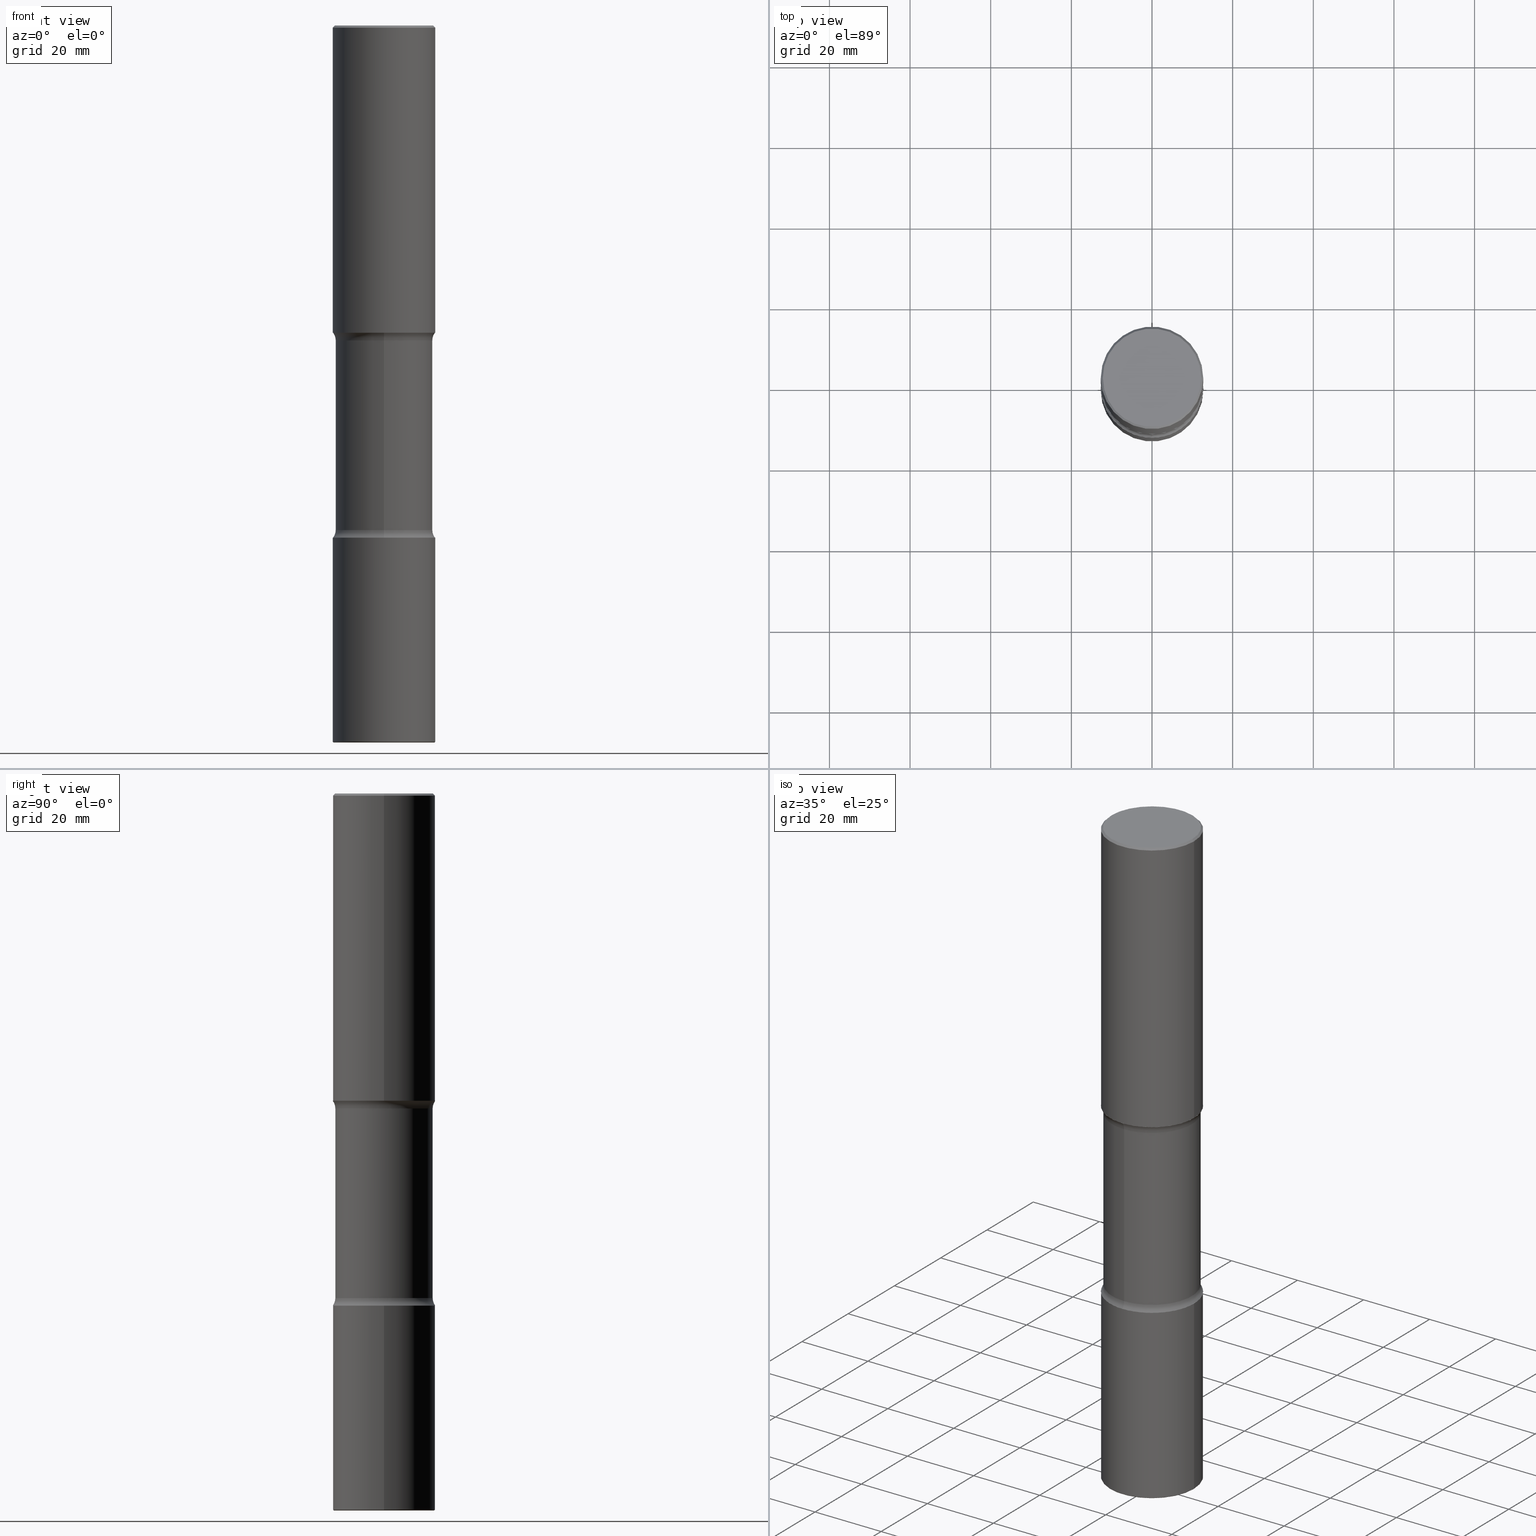
[diagram: canonical four-view strip — front | top / right | iso, engineering-drawing reading convention]
A machine part, canonical four-view strip (front | top / right | iso — engineering-drawing reading convention). The complete STEP part file that produces these views, byte-faithful:
ISO-10303-21;
HEADER;
FILE_DESCRIPTION (( 'STEP AP203' ),
    '1' );
FILE_NAME ('37961.STEP',
    '2024-03-02T01:49:52',
    ( '' ),
    ( '' ),
    'SwSTEP 2.0',
    'SolidWorks 2023',
    '' );
FILE_SCHEMA (( 'CONFIG_CONTROL_DESIGN' ));
ENDSEC;

DATA;
#1 = ORIENTED_EDGE ( 'NONE', *, *, #489, .T. ) ;
#2 = APPLICATION_CONTEXT ( 'configuration controlled 3d designs of mechanical parts and assemblies' ) ;
#3 = DIRECTION ( 'NONE',  ( -2.445468806185136597E-29, 3.491481338843145583E-15, 1.000000000000000000 ) ) ;
#4 = ORIENTED_EDGE ( 'NONE', *, *, #401, .F. ) ;
#5 = CALENDAR_DATE ( 2024, 1, 3 ) ;
#6 = DIRECTION ( 'NONE',  ( 1.000000000000000000, -6.982962677686266711E-15, 0.000000000000000000 ) ) ;
#7 = ORIENTED_EDGE ( 'NONE', *, *, #253, .F. ) ;
#8 = AXIS2_PLACEMENT_3D ( 'NONE', #494, #103, #61 ) ;
#9 = CIRCLE ( 'NONE', #511, 0.4900000000000002132 ) ;
#10 = EDGE_CURVE ( 'NONE', #410, #215, #295, .T. ) ;
#11 = CARTESIAN_POINT ( 'NONE',  ( 0.4900000000000002132, -2.786202108396829505E-14, -7.000000000000000888 ) ) ;
#12 = APPROVAL_DATE_TIME ( #408, #384 ) ;
#13 = CIRCLE ( 'NONE', #209, 0.4799999999999998157 ) ;
#14 = LOCAL_TIME ( 20, 49, 52.00000000000000000, #122 ) ;
#15 = ADVANCED_FACE ( 'NONE', ( #533 ), #141, .T. ) ;
#16 = ORIENTED_EDGE ( 'NONE', *, *, #409, .F. ) ;
#17 = DIRECTION ( 'NONE',  ( -0.7071067811865471286, 2.468850131082252722E-15, -0.7071067811865479058 ) ) ;
#18 = DIRECTION ( 'NONE',  ( 1.000000000000000000, -6.982962677686265922E-15, 4.876176775795935793E-29 ) ) ;
#19 = AXIS2_PLACEMENT_3D ( 'NONE', #383, #69, #18 ) ;
#20 = CC_DESIGN_DATE_AND_TIME_ASSIGNMENT ( #30, #124, ( #431 ) ) ;
#21 = AXIS2_PLACEMENT_3D ( 'NONE', #123, #163, #41 ) ;
#22 = CYLINDRICAL_SURFACE ( 'NONE', #470, 0.4750000000000000333 ) ;
#23 = ORIENTED_EDGE ( 'NONE', *, *, #330, .T. ) ;
#24 = DIRECTION ( 'NONE',  ( -2.445468806185136597E-29, 3.491481338843145583E-15, 1.000000000000000000 ) ) ;
#25 = ORIENTED_EDGE ( 'NONE', *, *, #292, .F. ) ;
#26 = CARTESIAN_POINT ( 'NONE',  ( -0.5000000000000006661, -2.085274087971308453E-14, -6.989999999999999325 ) ) ;
#27 = DIRECTION ( 'NONE',  ( -2.445468806185136597E-29, 3.491481338843145583E-15, 1.000000000000000000 ) ) ;
#28 = DIRECTION ( 'NONE',  ( -1.000000000000000000, 6.982962677686265922E-15, -4.883557194083112340E-29 ) ) ;
#29 = DIRECTION ( 'NONE',  ( 6.982962677686265133E-15, 1.000000000000000000, -2.300503573612011422E-15 ) ) ;
#30 = DATE_AND_TIME ( #241, #14 ) ;
#31 = DIRECTION ( 'NONE',  ( -6.982962677686264344E-15, -1.000000000000000000, 0.000000000000000000 ) ) ;
#32 = CIRCLE ( 'NONE', #74, 0.4799999999999998157 ) ;
#33 = VECTOR ( 'NONE', #310, 39.37007874015748143 ) ;
#34 = EDGE_CURVE ( 'NONE', #131, #406, #543, .T. ) ;
#35 = DIRECTION ( 'NONE',  ( -1.000000000000000000, 6.982962677686266711E-15, 0.000000000000000000 ) ) ;
#36 = APPLICATION_CONTEXT ( 'configuration controlled 3d designs of mechanical parts and assemblies' ) ;
#37 = VERTEX_POINT ( 'NONE', #545 ) ;
#38 = PRODUCT ( '37961', '37961', '', ( #81 ) ) ;
#39 = ADVANCED_FACE ( 'NONE', ( #338 ), #252, .F. ) ;
#40 = ADVANCED_FACE ( 'NONE', ( #506 ), #197, .T. ) ;
#41 = DIRECTION ( 'NONE',  ( 6.982962677686266711E-15, 1.000000000000000000, -4.370956789862819572E-15 ) ) ;
#42 = CIRCLE ( 'NONE', #362, 0.1250000000000001110 ) ;
#43 = PERSON_AND_ORGANIZATION ( #495, #130 ) ;
#44 = LOCAL_TIME ( 20, 49, 52.00000000000000000, #509 ) ;
#45 = DIRECTION ( 'NONE',  ( -2.445468806185136597E-29, 3.491481338843145583E-15, 1.000000000000000000 ) ) ;
#46 = EDGE_CURVE ( 'NONE', #47, #319, #527, .T. ) ;
#47 = VERTEX_POINT ( 'NONE', #238 ) ;
#48 = PERSON_AND_ORGANIZATION_ROLE ( 'design_owner' ) ;
#49 = FACE_OUTER_BOUND ( 'NONE', #433, .T. ) ;
#50 = ORIENTED_EDGE ( 'NONE', *, *, #262, .F. ) ;
#51 = AXIS2_PLACEMENT_3D ( 'NONE', #76, #294, #374 ) ;
#52 = CIRCLE ( 'NONE', #475, 0.1250000000000002498 ) ;
#53 = PRODUCT_DEFINITION_FORMATION_WITH_SPECIFIED_SOURCE ( 'ANY', '', #38, .NOT_KNOWN. ) ;
#54 = CARTESIAN_POINT ( 'NONE',  ( -4.116298798662799188E-15, -0.6000000000000174083, -4.924999999999996270 ) ) ;
#55 = ORIENTED_EDGE ( 'NONE', *, *, #34, .F. ) ;
#56 = CIRCLE ( 'NONE', #152, 0.5000000000000004441 ) ;
#57 = DATE_AND_TIME ( #228, #557 ) ;
#58 = DIRECTION ( 'NONE',  ( 1.000000000000000000, -6.982962677686267499E-15, 4.876176775795935793E-29 ) ) ;
#59 = APPROVAL ( #147, 'UNSPECIFIED' ) ;
#60 = CARTESIAN_POINT ( 'NONE',  ( 3.316907271901051235E-15, 0.4749999999999892641, -3.075000000000001510 ) ) ;
#61 = DIRECTION ( 'NONE',  ( 6.982962677686265922E-15, 1.000000000000000000, -3.419634877618474112E-15 ) ) ;
#62 =( NAMED_UNIT ( * ) PLANE_ANGLE_UNIT ( ) SI_UNIT ( $, .RADIAN. ) );
#63 = AXIS2_PLACEMENT_3D ( 'NONE', #250, #358, #521 ) ;
#64 = CARTESIAN_POINT ( 'NONE',  ( 4.189777606611881511E-15, 0.5999999999999829914, -4.925000000000000711 ) ) ;
#65 = TOROIDAL_SURFACE ( 'NONE', #357, 0.5999999999999999778, 0.1250000000000001110 ) ;
#66 = ORIENTED_EDGE ( 'NONE', *, *, #269, .T. ) ;
#67 = DIRECTION ( 'NONE',  ( 1.000000000000000000, -6.860497997771530774E-15, 4.841678745011831520E-29 ) ) ;
#68 = CYLINDRICAL_SURFACE ( 'NONE', #129, 0.4750000000000000333 ) ;
#69 = DIRECTION ( 'NONE',  ( -2.438088387897960049E-29, 3.491481338843145188E-15, 1.000000000000000000 ) ) ;
#70 = CARTESIAN_POINT ( 'NONE',  ( 1.721862187474709565E-28, -2.429667644945267101E-14, -6.999999999999998224 ) ) ;
#71 = CC_DESIGN_PERSON_AND_ORGANIZATION_ASSIGNMENT ( #177, #366, ( #477 ) ) ;
#72 = DIRECTION ( 'NONE',  ( 1.000000000000000000, -6.982962677686266711E-15, 4.876431871984415397E-29 ) ) ;
#73 = DIRECTION ( 'NONE',  ( 1.000000000000000000, -6.982962677686270655E-15, 0.000000000000000000 ) ) ;
#74 = AXIS2_PLACEMENT_3D ( 'NONE', #378, #540, #72 ) ;
#75 = TOROIDAL_SURFACE ( 'NONE', #219, 0.6000000000000001998, 0.1250000000000002498 ) ;
#76 = CARTESIAN_POINT ( 'NONE',  ( 7.424434616114947917E-29, -1.087289751662588659E-14, -3.075000000000000178 ) ) ;
#77 = FACE_OUTER_BOUND ( 'NONE', #525, .T. ) ;
#78 = ORIENTED_EDGE ( 'NONE', *, *, #237, .T. ) ;
#79 = ADVANCED_FACE ( 'NONE', ( #156 ), #203, .T. ) ;
#80 = DIRECTION ( 'NONE',  ( -2.445468806185136597E-29, 3.491481338843145583E-15, 1.000000000000000000 ) ) ;
#81 = MECHANICAL_CONTEXT ( 'NONE', #2, 'mechanical' ) ;
#82 = DIRECTION ( 'NONE',  ( 2.495638921910708014E-29, -3.419634877618474112E-15, -1.000000000000000000 ) ) ;
#83 = PLANE ( 'NONE',  #108 ) ;
#84 = AXIS2_PLACEMENT_3D ( 'NONE', #206, #559, #216 ) ;
#85 = CC_DESIGN_APPROVAL ( #181, ( #431 ) ) ;
#86 = EDGE_LOOP ( 'NONE', ( #92, #449 ) ) ;
#87 = ORIENTED_EDGE ( 'NONE', *, *, #170, .T. ) ;
#88 = ORIENTED_EDGE ( 'NONE', *, *, #463, .F. ) ;
#89 = ADVANCED_FACE ( 'NONE', ( #110 ), #107, .T. ) ;
#90 = ORIENTED_EDGE ( 'NONE', *, *, #323, .F. ) ;
#91 = PLANE ( 'NONE',  #403 ) ;
#92 = ORIENTED_EDGE ( 'NONE', *, *, #102, .F. ) ;
#93 = DIRECTION ( 'NONE',  ( -2.445468806185136597E-29, 3.491481338843145583E-15, 1.000000000000000000 ) ) ;
#94 = CC_DESIGN_PERSON_AND_ORGANIZATION_ASSIGNMENT ( #300, #343, ( #53 ) ) ;
#95 = DIRECTION ( 'NONE',  ( 2.495638921910708014E-29, -3.419634877618474112E-15, -1.000000000000000000 ) ) ;
#96 = APPROVAL_ROLE ( '' ) ;
#97 = AXIS2_PLACEMENT_3D ( 'NONE', #423, #417, #333 ) ;
#98 = VECTOR ( 'NONE', #460, 39.37007874015748143 ) ;
#99 = AXIS2_PLACEMENT_3D ( 'NONE', #350, #82, #254 ) ;
#100 = LINE ( 'NONE', #337, #394 ) ;
#101 = MANIFOLD_SOLID_BREP ( 'Body-Move/Copy2[1]', #270 ) ;
#102 = EDGE_CURVE ( 'NONE', #560, #537, #263, .T. ) ;
#103 = DIRECTION ( 'NONE',  ( 2.495638921910707734E-29, -3.419634877618474112E-15, -1.000000000000000000 ) ) ;
#104 =( CONVERSION_BASED_UNIT ( 'INCH', #143 ) LENGTH_UNIT ( ) NAMED_UNIT ( #312 ) );
#105 = CARTESIAN_POINT ( 'NONE',  ( -3.344492773913550718E-15, -0.4750000000000109690, -3.074999999999998401 ) ) ;
#106 = CARTESIAN_POINT ( 'NONE',  ( 1.222734403092568074E-28, -1.745740669421572673E-14, -4.999999999999999112 ) ) ;
#107 = TOROIDAL_SURFACE ( 'NONE', #97, 0.4900000000000002132, 0.01000000000000067849 ) ;
#108 = AXIS2_PLACEMENT_3D ( 'NONE', #473, #133, #126 ) ;
#109 = CARTESIAN_POINT ( 'NONE',  ( 4.890937612370306439E-31, -6.982962677686338448E-17, -0.02000000000000013572 ) ) ;
#110 = FACE_OUTER_BOUND ( 'NONE', #353, .T. ) ;
#111 = EDGE_CURVE ( 'NONE', #480, #169, #307, .T. ) ;
#112 = DIRECTION ( 'NONE',  ( 1.000000000000000000, -6.982962677686266711E-15, 0.000000000000000000 ) ) ;
#113 = EDGE_LOOP ( 'NONE', ( #412, #90 ) ) ;
#114 = FACE_OUTER_BOUND ( 'NONE', #113, .T. ) ;
#115 = ORIENTED_EDGE ( 'NONE', *, *, #136, .F. ) ;
#116 = PLANE ( 'NONE',  #8 ) ;
#117 = CALENDAR_DATE ( 2024, 1, 3 ) ;
#118 = DIRECTION ( 'NONE',  ( 1.000000000000000000, 0.000000000000000000, 0.000000000000000000 ) ) ;
#119 = CIRCLE ( 'NONE', #142, 0.1250000000000002498 ) ;
#120 = LINE ( 'NONE', #171, #33 ) ;
#121 = ADVANCED_FACE ( 'NONE', ( #114 ), #553, .F. ) ;
#122 = COORDINATED_UNIVERSAL_TIME_OFFSET ( 5, 0, .BEHIND. ) ;
#123 = CARTESIAN_POINT ( 'NONE',  ( 1.222734403092568074E-28, -1.745740669421572673E-14, -4.999999999999999112 ) ) ;
#124 = DATE_TIME_ROLE ( 'classification_date' ) ;
#125 = ORIENTED_EDGE ( 'NONE', *, *, #46, .T. ) ;
#126 = DIRECTION ( 'NONE',  ( -1.000000000000000000, 6.982962677686265922E-15, -4.876176775795935793E-29 ) ) ;
#127 = ORIENTED_EDGE ( 'NONE', *, *, #451, .T. ) ;
#128 = CARTESIAN_POINT ( 'NONE',  ( 7.336406418555407548E-29, -1.047444401652943320E-14, -2.999999999999999112 ) ) ;
#129 = AXIS2_PLACEMENT_3D ( 'NONE', #504, #243, #547 ) ;
#130 = ORGANIZATION ( 'UNSPECIFIED', 'UNSPECIFIED', '' ) ;
#131 = VERTEX_POINT ( 'NONE', #194 ) ;
#132 = EDGE_CURVE ( 'NONE', #482, #387, #519, .T. ) ;
#133 = DIRECTION ( 'NONE',  ( 2.438088387897960049E-29, -3.491481338843145188E-15, -1.000000000000000000 ) ) ;
#134 = VERTEX_POINT ( 'NONE', #158 ) ;
#135 = EDGE_LOOP ( 'NONE', ( #266, #479, #155, #140 ) ) ;
#136 = EDGE_CURVE ( 'NONE', #37, #202, #32, .T. ) ;
#137 = VECTOR ( 'NONE', #344, 39.37007874015748143 ) ;
#138 = APPROVAL_PERSON_ORGANIZATION ( #450, #384, #452 ) ;
#139 = CARTESIAN_POINT ( 'NONE',  ( 7.236066187104263592E-29, -1.061813693897877772E-14, -2.999999999999999112 ) ) ;
#140 = ORIENTED_EDGE ( 'NONE', *, *, #313, .F. ) ;
#141 = CYLINDRICAL_SURFACE ( 'NONE', #247, 0.5000000000000001110 ) ;
#142 = AXIS2_PLACEMENT_3D ( 'NONE', #64, #28, #544 ) ;
#143 = LENGTH_MEASURE_WITH_UNIT ( LENGTH_MEASURE( 0.02539999999999999897 ), #376 );
#144 = ORIENTED_EDGE ( 'NONE', *, *, #356, .F. ) ;
#145 = CARTESIAN_POINT ( 'NONE',  ( -0.4999999999999999445, 3.421651712066269663E-15, -0.02000000000000013572 ) ) ;
#146 = CARTESIAN_POINT ( 'NONE',  ( -0.4799999999999998157, 3.386736898677838408E-15, 1.707404996037808406E-17 ) ) ;
#147 = APPROVAL_STATUS ( 'not_yet_approved' ) ;
#148 = DIRECTION ( 'NONE',  ( 2.495638921910708014E-29, -3.419634877618474112E-15, -1.000000000000000000 ) ) ;
#149 = ORIENTED_EDGE ( 'NONE', *, *, #136, .T. ) ;
#150 = DIRECTION ( 'NONE',  ( 2.495638921910708014E-29, -3.419634877618474112E-15, -1.000000000000000000 ) ) ;
#151 = EDGE_CURVE ( 'NONE', #311, #215, #498, .T. ) ;
#152 = AXIS2_PLACEMENT_3D ( 'NONE', #139, #95, #268 ) ;
#153 = CARTESIAN_POINT ( 'NONE',  ( 1.204393387046179415E-28, -1.719554559380248700E-14, -4.924999999999998046 ) ) ;
#154 = APPROVAL_PERSON_ORGANIZATION ( #185, #59, #96 ) ;
#155 = ORIENTED_EDGE ( 'NONE', *, *, #489, .F. ) ;
#156 = FACE_OUTER_BOUND ( 'NONE', #369, .T. ) ;
#157 = LINE ( 'NONE', #284, #98 ) ;
#158 = CARTESIAN_POINT ( 'NONE',  ( -3.430248998885697150E-15, -0.5000000000000112133, -2.999999999999997335 ) ) ;
#159 = APPROVAL_ROLE ( '' ) ;
#160 = CC_DESIGN_DATE_AND_TIME_ASSIGNMENT ( #455, #370, ( #477 ) ) ;
#161 = DIRECTION ( 'NONE',  ( 6.860497997771531562E-15, 1.000000000000000000, 0.000000000000000000 ) ) ;
#162 = AXIS2_PLACEMENT_3D ( 'NONE', #397, #3, #518 ) ;
#163 = DIRECTION ( 'NONE',  ( 2.495638921910708014E-29, -3.419634877618474112E-15, -1.000000000000000000 ) ) ;
#164 = ORIENTED_EDGE ( 'NONE', *, *, #151, .F. ) ;
#165 = CARTESIAN_POINT ( 'NONE',  ( 7.236066187104263592E-29, -1.061813693897877772E-14, -2.999999999999999112 ) ) ;
#166 = DESIGN_CONTEXT ( 'detailed design', #36, 'design' ) ;
#167 = ORIENTED_EDGE ( 'NONE', *, *, #102, .T. ) ;
#168 = DIRECTION ( 'NONE',  ( -2.445468806185136597E-29, 3.491481338843145583E-15, 1.000000000000000000 ) ) ;
#169 = VERTEX_POINT ( 'NONE', #428 ) ;
#170 = EDGE_CURVE ( 'NONE', #311, #485, #488, .T. ) ;
#171 = CARTESIAN_POINT ( 'NONE',  ( 0.4999999999999999445, -3.500078625662628685E-15, -0.02000000000000013572 ) ) ;
#172 = AXIS2_PLACEMENT_3D ( 'NONE', #190, #27, #329 ) ;
#173 = ORIENTED_EDGE ( 'NONE', *, *, #542, .F. ) ;
#174 = ORIENTED_EDGE ( 'NONE', *, *, #401, .T. ) ;
#175 = DIRECTION ( 'NONE',  ( 1.000000000000000000, -6.982962677686267499E-15, 0.000000000000000000 ) ) ;
#176 = AXIS2_PLACEMENT_3D ( 'NONE', #381, #492, #31 ) ;
#177 = PERSON_AND_ORGANIZATION ( #495, #130 ) ;
#178 = LOCAL_TIME ( 20, 49, 52.00000000000000000, #354 ) ;
#179 = DIRECTION ( 'NONE',  ( 1.000000000000000000, -6.982962677686263555E-15, 0.000000000000000000 ) ) ;
#180 = CALENDAR_DATE ( 2024, 1, 3 ) ;
#181 = APPROVAL ( #339, 'UNSPECIFIED' ) ;
#182 =( NAMED_UNIT ( * ) SI_UNIT ( $, .STERADIAN. ) SOLID_ANGLE_UNIT ( ) );
#183 = FACE_OUTER_BOUND ( 'NONE', #287, .T. ) ;
#184 = CARTESIAN_POINT ( 'NONE',  ( 1.709382695523410463E-28, -2.440545455851358546E-14, -6.989999999999999325 ) ) ;
#185 = PERSON_AND_ORGANIZATION ( #495, #130 ) ;
#186 = CLOSED_SHELL ( 'NONE', ( #15, #507, #392, #415, #121, #481 ) ) ;
#187 = CONICAL_SURFACE ( 'NONE', #512, 0.4999999999999999445, 0.7853981633974477239 ) ;
#188 =( GEOMETRIC_REPRESENTATION_CONTEXT ( 3 ) GLOBAL_UNCERTAINTY_ASSIGNED_CONTEXT ( ( #554 ) ) GLOBAL_UNIT_ASSIGNED_CONTEXT ( ( #104, #62, #182 ) ) REPRESENTATION_CONTEXT ( 'NONE', 'WORKASPACE' ) );
#189 = DIRECTION ( 'NONE',  ( 2.495638921910708014E-29, -3.419634877618474112E-15, -1.000000000000000000 ) ) ;
#190 = CARTESIAN_POINT ( 'NONE',  ( 1.711828164329595618E-28, -2.444036937190202184E-14, -7.000000000000000888 ) ) ;
#191 = ORIENTED_EDGE ( 'NONE', *, *, #313, .T. ) ;
#192 = FACE_OUTER_BOUND ( 'NONE', #526, .T. ) ;
#193 = CC_DESIGN_PERSON_AND_ORGANIZATION_ASSIGNMENT ( #315, #48, ( #38 ) ) ;
#194 = CARTESIAN_POINT ( 'NONE',  ( -0.5000000000000002220, -1.719423142852643572E-15, -2.999999999999999112 ) ) ;
#195 = ORIENTED_EDGE ( 'NONE', *, *, #237, .F. ) ;
#196 = CARTESIAN_POINT ( 'NONE',  ( 3.491481338843209480E-15, 0.4999999999999900080, -3.000000000000000888 ) ) ;
#197 = PLANE ( 'NONE',  #232 ) ;
#198 = PERSON_AND_ORGANIZATION ( #495, #130 ) ;
#199 = AXIS2_PLACEMENT_3D ( 'NONE', #467, #24, #275 ) ;
#200 = TOROIDAL_SURFACE ( 'NONE', #539, 0.4900000000000002132, 0.01000000000000067849 ) ;
#201 = DIRECTION ( 'NONE',  ( 7.105427357601001859E-15, 1.000000000000000000, -3.491481338843145583E-15 ) ) ;
#202 = VERTEX_POINT ( 'NONE', #146 ) ;
#203 = CYLINDRICAL_SURFACE ( 'NONE', #199, 0.5000000000000002220 ) ;
#204 = ADVANCED_FACE ( 'NONE', ( #462 ), #116, .F. ) ;
#205 = DIRECTION ( 'NONE',  ( 0.000000000000000000, 0.000000000000000000, 1.000000000000000000 ) ) ;
#206 = CARTESIAN_POINT ( 'NONE',  ( 1.709382695523410463E-28, -2.440545455851358546E-14, -6.989999999999999325 ) ) ;
#207 = ORIENTED_EDGE ( 'NONE', *, *, #524, .T. ) ;
#208 = CLOSED_SHELL ( 'NONE', ( #445, #457, #555, #39, #204, #341, #277, #499 ) ) ;
#209 = AXIS2_PLACEMENT_3D ( 'NONE', #210, #168, #348 ) ;
#210 = CARTESIAN_POINT ( 'NONE',  ( -4.175405657340879278E-46, 5.961372681521788801E-32, 1.707404996040164512E-17 ) ) ;
#211 = FACE_OUTER_BOUND ( 'NONE', #301, .T. ) ;
#212 = DIRECTION ( 'NONE',  ( 6.982962677686265133E-15, 1.000000000000000000, -3.278217592397113101E-15 ) ) ;
#213 = EDGE_LOOP ( 'NONE', ( #322, #7, #127, #217 ) ) ;
#214 = EDGE_CURVE ( 'NONE', #482, #134, #42, .T. ) ;
#215 = VERTEX_POINT ( 'NONE', #556 ) ;
#216 = DIRECTION ( 'NONE',  ( 1.000000000000000000, -6.982962677686265922E-15, 0.000000000000000000 ) ) ;
#217 = ORIENTED_EDGE ( 'NONE', *, *, #542, .T. ) ;
#218 = CARTESIAN_POINT ( 'NONE',  ( 0.4900000000000002132, -2.782710627057986183E-14, -6.989999999999999325 ) ) ;
#219 = AXIS2_PLACEMENT_3D ( 'NONE', #434, #297, #471 ) ;
#220 = ORIENTED_EDGE ( 'NONE', *, *, #278, .T. ) ;
#221 = CC_DESIGN_PERSON_AND_ORGANIZATION_ASSIGNMENT ( #414, #286, ( #53 ) ) ;
#222 = CARTESIAN_POINT ( 'NONE',  ( 0.000000000000000000, 0.000000000000000000, 0.000000000000000000 ) ) ;
#223 = DIRECTION ( 'NONE',  ( 1.000000000000000000, -6.860497997771530774E-15, 4.841678745011831520E-29 ) ) ;
#224 = DIRECTION ( 'NONE',  ( -2.445468806185136597E-29, 3.491481338843145583E-15, 1.000000000000000000 ) ) ;
#225 = CIRCLE ( 'NONE', #176, 0.1250000000000001110 ) ;
#226 = ORIENTED_EDGE ( 'NONE', *, *, #469, .F. ) ;
#227 = ADVANCED_FACE ( 'NONE', ( #395 ), #83, .F. ) ;
#228 = CALENDAR_DATE ( 2024, 1, 3 ) ;
#229 = DIRECTION ( 'NONE',  ( 6.982962677686265922E-15, 1.000000000000000000, -2.300503573612011028E-15 ) ) ;
#230 = CARTESIAN_POINT ( 'NONE',  ( 4.890937612370306439E-31, -6.982962677686338448E-17, -0.02000000000000013572 ) ) ;
#231 = CARTESIAN_POINT ( 'NONE',  ( -4.116298798662844153E-15, -0.6000000000000108580, -3.074999999999998401 ) ) ;
#232 = AXIS2_PLACEMENT_3D ( 'NONE', #245, #468, #426 ) ;
#233 = AXIS2_PLACEMENT_3D ( 'NONE', #289, #418, #464 ) ;
#234 = LOCAL_TIME ( 20, 49, 52.00000000000000000, #306 ) ;
#235 = EDGE_CURVE ( 'NONE', #485, #410, #304, .T. ) ;
#236 = FACE_OUTER_BOUND ( 'NONE', #505, .T. ) ;
#237 = EDGE_CURVE ( 'NONE', #485, #311, #363, .T. ) ;
#238 = CARTESIAN_POINT ( 'NONE',  ( -3.430248998885645480E-15, -0.5000000000000177636, -4.999999999999997335 ) ) ;
#239 = DIRECTION ( 'NONE',  ( -2.445468806185136597E-29, 3.491481338843145583E-15, 1.000000000000000000 ) ) ;
#240 = DIRECTION ( 'NONE',  ( 6.982962677686266711E-15, 1.000000000000000000, -4.370956789862819572E-15 ) ) ;
#241 = CALENDAR_DATE ( 2024, 1, 3 ) ;
#242 = VERTEX_POINT ( 'NONE', #299 ) ;
#243 = DIRECTION ( 'NONE',  ( 2.495638921910708014E-29, -3.419634877618474112E-15, -1.000000000000000000 ) ) ;
#244 = ORIENTED_EDGE ( 'NONE', *, *, #214, .T. ) ;
#245 = CARTESIAN_POINT ( 'NONE',  ( -4.683309877697932698E-29, -5.566148929949358886E-14, -7.000000000000000000 ) ) ;
#246 = EDGE_CURVE ( 'NONE', #406, #347, #271, .T. ) ;
#247 = AXIS2_PLACEMENT_3D ( 'NONE', #324, #486, #380 ) ;
#248 = ORIENTED_EDGE ( 'NONE', *, *, #469, .T. ) ;
#249 = EDGE_LOOP ( 'NONE', ( #55, #316, #191, #424 ) ) ;
#250 = CARTESIAN_POINT ( 'NONE',  ( 7.423239106247569958E-29, -1.087460955480016368E-14, -3.074999999999999734 ) ) ;
#251 = ORIENTED_EDGE ( 'NONE', *, *, #253, .T. ) ;
#252 = TOROIDAL_SURFACE ( 'NONE', #51, 0.5999999999999999778, 0.1250000000000001110 ) ;
#253 = EDGE_CURVE ( 'NONE', #319, #47, #411, .T. ) ;
#254 = DIRECTION ( 'NONE',  ( 6.982962677686265133E-15, 1.000000000000000000, -2.300503573612011422E-15 ) ) ;
#255 = AXIS2_PLACEMENT_3D ( 'NONE', #422, #201, #490 ) ;
#256 = DIRECTION ( 'NONE',  ( -2.445468806185136877E-29, 3.491481338843145188E-15, 1.000000000000000000 ) ) ;
#257 = ORIENTED_EDGE ( 'NONE', *, *, #10, .T. ) ;
#258 = ORIENTED_EDGE ( 'NONE', *, *, #500, .T. ) ;
#259 = EDGE_LOOP ( 'NONE', ( #474, #257 ) ) ;
#260 = FACE_OUTER_BOUND ( 'NONE', #522, .T. ) ;
#261 = ORIENTED_EDGE ( 'NONE', *, *, #278, .F. ) ;
#262 = EDGE_CURVE ( 'NONE', #37, #347, #120, .T. ) ;
#263 = CIRCLE ( 'NONE', #172, 0.4900000000000002132 ) ;
#264 = CIRCLE ( 'NONE', #99, 0.4749999999999999778 ) ;
#265 = CIRCLE ( 'NONE', #550, 0.5000000000000002220 ) ;
#266 = ORIENTED_EDGE ( 'NONE', *, *, #328, .T. ) ;
#267 = APPLICATION_PROTOCOL_DEFINITION ( 'international standard', 'config_control_design', 1994, #36 ) ;
#268 = DIRECTION ( 'NONE',  ( 6.982962677686265133E-15, 1.000000000000000000, -3.278217592397113101E-15 ) ) ;
#269 = EDGE_CURVE ( 'NONE', #387, #482, #355, .T. ) ;
#270 = CLOSED_SHELL ( 'NONE', ( #349, #89, #40, #302, #79, #227 ) ) ;
#271 = CIRCLE ( 'NONE', #325, 0.4999999999999999445 ) ;
#272 = DATE_AND_TIME ( #117, #44 ) ;
#273 = CARTESIAN_POINT ( 'NONE',  ( -0.5000000000000002220, -1.737871694756415201E-14, -4.999999999999999112 ) ) ;
#274 = DIRECTION ( 'NONE',  ( -2.445468806185136597E-29, 3.491481338843145583E-15, 1.000000000000000000 ) ) ;
#275 = DIRECTION ( 'NONE',  ( 1.000000000000000000, -6.982962677686267499E-15, 4.876176775795936353E-29 ) ) ;
#276 = APPROVAL_DATE_TIME ( #57, #59 ) ;
#277 = ADVANCED_FACE ( 'NONE', ( #390 ), #75, .F. ) ;
#278 = EDGE_CURVE ( 'NONE', #444, #134, #420, .T. ) ;
#279 = DIRECTION ( 'NONE',  ( 1.000000000000000000, -6.982962677686263555E-15, 0.000000000000000000 ) ) ;
#280 = ORIENTED_EDGE ( 'NONE', *, *, #246, .T. ) ;
#281 = DIRECTION ( 'NONE',  ( -2.445468806185136597E-29, 3.491481338843145583E-15, 1.000000000000000000 ) ) ;
#282 = AXIS2_PLACEMENT_3D ( 'NONE', #465, #335, #29 ) ;
#283 = CIRCLE ( 'NONE', #483, 0.01000000000000071318 ) ;
#284 = CARTESIAN_POINT ( 'NONE',  ( -3.258736548941304889E-15, -0.4750000000000243472, -6.999999999999997335 ) ) ;
#285 = CARTESIAN_POINT ( 'NONE',  ( -0.5000000000000001110, 3.552713678800501718E-15, -2.459467545127453732E-29 ) ) ;
#286 = PERSON_AND_ORGANIZATION_ROLE ( 'creator' ) ;
#287 = EDGE_LOOP ( 'NONE', ( #115, #368, #1, #298 ) ) ;
#288 = ADVANCED_BREP_SHAPE_REPRESENTATION ( '37961', ( #101, #303, #293, #364 ), #188 ) ;
#289 = CARTESIAN_POINT ( 'NONE',  ( 3.351822085289406364E-15, 0.4799999999999998157, -1.667374017664508443E-15 ) ) ;
#290 = DIRECTION ( 'NONE',  ( 6.982962677686265133E-15, 1.000000000000000000, -3.450755360418015555E-15 ) ) ;
#291 = CARTESIAN_POINT ( 'NONE',  ( 1.711828164329595618E-28, -2.444036937190202184E-14, -7.000000000000000888 ) ) ;
#292 = EDGE_CURVE ( 'NONE', #202, #37, #13, .T. ) ;
#293 = MANIFOLD_SOLID_BREP ( 'Body-Move/Copy2[4]', #208 ) ;
#294 = DIRECTION ( 'NONE',  ( 2.495638921910708014E-29, -3.419634877618474112E-15, -1.000000000000000000 ) ) ;
#295 = CIRCLE ( 'NONE', #548, 0.5000000000000002220 ) ;
#296 = CC_DESIGN_APPROVAL ( #59, ( #53 ) ) ;
#297 = DIRECTION ( 'NONE',  ( 2.495638921910708014E-29, -3.419634877618474112E-15, -1.000000000000000000 ) ) ;
#298 = ORIENTED_EDGE ( 'NONE', *, *, #500, .F. ) ;
#299 = CARTESIAN_POINT ( 'NONE',  ( 0.5000000000000002220, -1.396592535537256813E-14, -2.999999999999999112 ) ) ;
#300 = PERSON_AND_ORGANIZATION ( #495, #130 ) ;
#301 = EDGE_LOOP ( 'NONE', ( #532, #244, #517, #4 ) ) ;
#302 = ADVANCED_FACE ( 'NONE', ( #77 ), #200, .T. ) ;
#303 = MANIFOLD_SOLID_BREP ( 'Body-Move/Copy2[2]', #186 ) ;
#304 = LINE ( 'NONE', #442, #137 ) ;
#305 = ORIENTED_EDGE ( 'NONE', *, *, #235, .F. ) ;
#306 = COORDINATED_UNIVERSAL_TIME_OFFSET ( 5, 0, .BEHIND. ) ;
#307 = CIRCLE ( 'NONE', #282, 0.4749999999999999778 ) ;
#308 = APPLICATION_PROTOCOL_DEFINITION ( 'international standard', 'config_control_design', 1994, #2 ) ;
#309 = CIRCLE ( 'NONE', #346, 0.5000000000000002220 ) ;
#310 = DIRECTION ( 'NONE',  ( 0.7071067811865471286, -7.319954787623254468E-15, -0.7071067811865479058 ) ) ;
#311 = VERTEX_POINT ( 'NONE', #435 ) ;
#312 = DIMENSIONAL_EXPONENTS ( 1.000000000000000000, 0.000000000000000000, 0.000000000000000000, 0.000000000000000000, 0.000000000000000000, 0.000000000000000000, 0.000000000000000000 ) ;
#313 = EDGE_CURVE ( 'NONE', #242, #347, #351, .T. ) ;
#314 = ORIENTED_EDGE ( 'NONE', *, *, #451, .F. ) ;
#315 = PERSON_AND_ORGANIZATION ( #495, #130 ) ;
#316 = ORIENTED_EDGE ( 'NONE', *, *, #323, .T. ) ;
#317 = DIRECTION ( 'NONE',  ( -2.445468806185136597E-29, 3.491481338843145583E-15, 1.000000000000000000 ) ) ;
#318 = TOROIDAL_SURFACE ( 'NONE', #385, 0.6000000000000001998, 0.1250000000000002498 ) ;
#319 = VERTEX_POINT ( 'NONE', #438 ) ;
#320 = DIRECTION ( 'NONE',  ( 6.982962677686265133E-15, 1.000000000000000000, -3.419634877618474112E-15 ) ) ;
#321 = DIRECTION ( 'NONE',  ( -6.982962677686266711E-15, -1.000000000000000000, 3.491481338843145583E-15 ) ) ;
#322 = ORIENTED_EDGE ( 'NONE', *, *, #371, .F. ) ;
#323 = EDGE_CURVE ( 'NONE', #131, #242, #528, .T. ) ;
#324 = CARTESIAN_POINT ( 'NONE',  ( 0.000000000000000000, 0.000000000000000000, 0.000000000000000000 ) ) ;
#325 = AXIS2_PLACEMENT_3D ( 'NONE', #399, #45, #6 ) ;
#326 = APPROVAL_PERSON_ORGANIZATION ( #198, #181, #159 ) ;
#327 = DIRECTION ( 'NONE',  ( 2.445468806185136597E-29, -3.491481338843145583E-15, -1.000000000000000000 ) ) ;
#328 = EDGE_CURVE ( 'NONE', #242, #131, #265, .T. ) ;
#329 = DIRECTION ( 'NONE',  ( 1.000000000000000000, -6.982962677686270655E-15, 0.000000000000000000 ) ) ;
#330 = EDGE_CURVE ( 'NONE', #560, #311, #283, .T. ) ;
#331 = DIRECTION ( 'NONE',  ( 6.982962677686265133E-15, 1.000000000000000000, -3.419634877618474112E-15 ) ) ;
#332 = ORIENTED_EDGE ( 'NONE', *, *, #214, .F. ) ;
#333 = DIRECTION ( 'NONE',  ( 1.000000000000000000, -6.982962677686265133E-15, 4.883557194083112340E-29 ) ) ;
#334 = FACE_OUTER_BOUND ( 'NONE', #249, .T. ) ;
#335 = DIRECTION ( 'NONE',  ( 2.495638921910708014E-29, -3.419634877618474112E-15, -1.000000000000000000 ) ) ;
#336 = CIRCLE ( 'NONE', #430, 0.4999999999999999445 ) ;
#337 = CARTESIAN_POINT ( 'NONE',  ( 3.316907271901148659E-15, 0.4749999999999757194, -7.000000000000000000 ) ) ;
#338 = FACE_OUTER_BOUND ( 'NONE', #549, .T. ) ;
#339 = APPROVAL_STATUS ( 'not_yet_approved' ) ;
#340 = ORIENTED_EDGE ( 'NONE', *, *, #170, .F. ) ;
#341 = ADVANCED_FACE ( 'NONE', ( #260 ), #91, .F. ) ;
#342 = DIRECTION ( 'NONE',  ( -2.445468806185136877E-29, 3.491481338843145188E-15, 1.000000000000000000 ) ) ;
#343 = PERSON_AND_ORGANIZATION_ROLE ( 'design_supplier' ) ;
#344 = DIRECTION ( 'NONE',  ( -2.445468806185136877E-29, 3.491481338843145188E-15, 1.000000000000000000 ) ) ;
#345 = AXIS2_PLACEMENT_3D ( 'NONE', #503, #551, #290 ) ;
#346 = AXIS2_PLACEMENT_3D ( 'NONE', #377, #274, #279 ) ;
#347 = VERTEX_POINT ( 'NONE', #407 ) ;
#348 = DIRECTION ( 'NONE',  ( 1.000000000000000000, -6.982962677686266711E-15, 4.876431871984415397E-29 ) ) ;
#349 = ADVANCED_FACE ( 'NONE', ( #49 ), #404, .T. ) ;
#350 = CARTESIAN_POINT ( 'NONE',  ( 1.204017111178237438E-28, -1.720093407839433761E-14, -4.924999999999998046 ) ) ;
#351 = LINE ( 'NONE', #516, #437 ) ;
#352 = APPROVAL_DATE_TIME ( #272, #181 ) ;
#353 = EDGE_LOOP ( 'NONE', ( #167, #248, #340, #359 ) ) ;
#354 = COORDINATED_UNIVERSAL_TIME_OFFSET ( 5, 0, .BEHIND. ) ;
#355 = CIRCLE ( 'NONE', #63, 0.4750000000000001443 ) ;
#356 = EDGE_CURVE ( 'NONE', #134, #444, #56, .T. ) ;
#357 = AXIS2_PLACEMENT_3D ( 'NONE', #361, #529, #320 ) ;
#358 = DIRECTION ( 'NONE',  ( 2.495638921910708014E-29, -3.419634877618474112E-15, -1.000000000000000000 ) ) ;
#359 = ORIENTED_EDGE ( 'NONE', *, *, #330, .F. ) ;
#360 = ORIENTED_EDGE ( 'NONE', *, *, #111, .F. ) ;
#361 = CARTESIAN_POINT ( 'NONE',  ( 7.424434616114947917E-29, -1.087289751662588659E-14, -3.075000000000000178 ) ) ;
#362 = AXIS2_PLACEMENT_3D ( 'NONE', #231, #67, #161 ) ;
#363 = CIRCLE ( 'NONE', #84, 0.5000000000000003331 ) ;
#364 = AXIS2_PLACEMENT_3D ( 'NONE', #536, #205, #118 ) ;
#365 = ORIENTED_EDGE ( 'NONE', *, *, #371, .T. ) ;
#366 = PERSON_AND_ORGANIZATION_ROLE ( 'creator' ) ;
#367 = DIRECTION ( 'NONE',  ( 1.000000000000000000, -6.982962677686417383E-15, 0.000000000000000000 ) ) ;
#368 = ORIENTED_EDGE ( 'NONE', *, *, #262, .T. ) ;
#369 = EDGE_LOOP ( 'NONE', ( #305, #78, #405, #382 ) ) ;
#370 = DATE_TIME_ROLE ( 'creation_date' ) ;
#371 = EDGE_CURVE ( 'NONE', #47, #480, #52, .T. ) ;
#372 = CARTESIAN_POINT ( 'NONE',  ( 4.890937612370306439E-31, -6.982962677686338448E-17, -0.02000000000000013572 ) ) ;
#373 = VECTOR ( 'NONE', #421, 39.37007874015748143 ) ;
#374 = DIRECTION ( 'NONE',  ( 6.982962677686265133E-15, 1.000000000000000000, -3.419634877618474112E-15 ) ) ;
#375 = AXIS2_PLACEMENT_3D ( 'NONE', #456, #239, #58 ) ;
#376 =( LENGTH_UNIT ( ) NAMED_UNIT ( * ) SI_UNIT ( $, .METRE. ) );
#377 = CARTESIAN_POINT ( 'NONE',  ( 1.222734403092568074E-28, -1.745740669421572673E-14, -4.999999999999999112 ) ) ;
#378 = CARTESIAN_POINT ( 'NONE',  ( -4.175405657340879278E-46, 5.961372681521788801E-32, 1.707404996040164512E-17 ) ) ;
#379 = PLANE ( 'NONE',  #233 ) ;
#380 = DIRECTION ( 'NONE',  ( 1.000000000000000000, -6.982962677686267499E-15, 4.876176775795935793E-29 ) ) ;
#381 = CARTESIAN_POINT ( 'NONE',  ( 4.189777606611833390E-15, 0.5999999999999890976, -3.075000000000002398 ) ) ;
#382 = ORIENTED_EDGE ( 'NONE', *, *, #10, .F. ) ;
#383 = CARTESIAN_POINT ( 'NONE',  ( 7.336406418555407548E-29, -1.047444401652943320E-14, -2.999999999999999112 ) ) ;
#384 = APPROVAL ( #441, 'UNSPECIFIED' ) ;
#385 = AXIS2_PLACEMENT_3D ( 'NONE', #153, #148, #331 ) ;
#386 = DIRECTION ( 'NONE',  ( 2.445468806185136597E-29, -3.491481338843145583E-15, -1.000000000000000000 ) ) ;
#387 = VERTEX_POINT ( 'NONE', #60 ) ;
#388 = DIRECTION ( 'NONE',  ( 2.495638921910708014E-29, -3.419634877618474112E-15, -1.000000000000000000 ) ) ;
#389 = DIRECTION ( 'NONE',  ( -2.445468806185136597E-29, 3.491481338843145583E-15, 1.000000000000000000 ) ) ;
#390 = FACE_OUTER_BOUND ( 'NONE', #213, .T. ) ;
#391 = PRODUCT_DEFINITION_SHAPE ( 'NONE', 'NONE',  #477 ) ;
#392 = ADVANCED_FACE ( 'NONE', ( #192 ), #502, .T. ) ;
#393 = EDGE_LOOP ( 'NONE', ( #66, #535, #173, #88 ) ) ;
#394 = VECTOR ( 'NONE', #150, 39.37007874015748143 ) ;
#395 = FACE_OUTER_BOUND ( 'NONE', #259, .T. ) ;
#396 = ORIENTED_EDGE ( 'NONE', *, *, #111, .T. ) ;
#397 = CARTESIAN_POINT ( 'NONE',  ( 7.336406418555407548E-29, -1.047444401652943320E-14, -2.999999999999999112 ) ) ;
#398 = EDGE_LOOP ( 'NONE', ( #558, #493, #400, #360 ) ) ;
#399 = CARTESIAN_POINT ( 'NONE',  ( 4.890937612370306439E-31, -6.982962677686338448E-17, -0.02000000000000013572 ) ) ;
#400 = ORIENTED_EDGE ( 'NONE', *, *, #463, .T. ) ;
#401 = EDGE_CURVE ( 'NONE', #387, #444, #225, .T. ) ;
#402 = AXIS2_PLACEMENT_3D ( 'NONE', #106, #388, #240 ) ;
#403 = AXIS2_PLACEMENT_3D ( 'NONE', #484, #446, #448 ) ;
#404 = CYLINDRICAL_SURFACE ( 'NONE', #520, 0.5000000000000002220 ) ;
#405 = ORIENTED_EDGE ( 'NONE', *, *, #151, .T. ) ;
#406 = VERTEX_POINT ( 'NONE', #541 ) ;
#407 = CARTESIAN_POINT ( 'NONE',  ( 0.4999999999999999445, -3.500078625662628685E-15, -0.02000000000000013572 ) ) ;
#408 = DATE_AND_TIME ( #5, #178 ) ;
#409 = EDGE_CURVE ( 'NONE', #215, #410, #309, .T. ) ;
#410 = VERTEX_POINT ( 'NONE', #273 ) ;
#411 = CIRCLE ( 'NONE', #21, 0.5000000000000002220 ) ;
#412 = ORIENTED_EDGE ( 'NONE', *, *, #328, .F. ) ;
#413 = EDGE_LOOP ( 'NONE', ( #440, #149 ) ) ;
#414 = PERSON_AND_ORGANIZATION ( #495, #130 ) ;
#415 = ADVANCED_FACE ( 'NONE', ( #501 ), #379, .F. ) ;
#416 = LINE ( 'NONE', #145, #447 ) ;
#417 = DIRECTION ( 'NONE',  ( -2.445468806185136597E-29, 3.491481338843145583E-15, 1.000000000000000000 ) ) ;
#418 = DIRECTION ( 'NONE',  ( 2.438088387897960049E-29, -3.491481338843145188E-15, -1.000000000000000000 ) ) ;
#419 = AXIS2_PLACEMENT_3D ( 'NONE', #184, #281, #508 ) ;
#420 = CIRCLE ( 'NONE', #461, 0.5000000000000004441 ) ;
#421 = DIRECTION ( 'NONE',  ( -2.445468806185136877E-29, 3.491481338843145188E-15, 1.000000000000000000 ) ) ;
#422 = CARTESIAN_POINT ( 'NONE',  ( -0.4900000000000002132, -2.092379515328909619E-14, -6.989999999999999325 ) ) ;
#423 = CARTESIAN_POINT ( 'NONE',  ( 1.709382695523410463E-28, -2.440545455851358546E-14, -6.989999999999999325 ) ) ;
#424 = ORIENTED_EDGE ( 'NONE', *, *, #246, .F. ) ;
#425 = DIRECTION ( 'NONE',  ( -2.445468806185136597E-29, 3.491481338843145583E-15, 1.000000000000000000 ) ) ;
#426 = DIRECTION ( 'NONE',  ( -1.000000000000000000, 6.982962677686265922E-15, -4.876176775795935793E-29 ) ) ;
#427 = DIRECTION ( 'NONE',  ( -1.000000000000000000, 6.982962677686266711E-15, 0.000000000000000000 ) ) ;
#428 = CARTESIAN_POINT ( 'NONE',  ( 3.316907271901096594E-15, 0.4749999999999827693, -4.924999999999999822 ) ) ;
#429 = VECTOR ( 'NONE', #342, 39.37007874015748143 ) ;
#430 = AXIS2_PLACEMENT_3D ( 'NONE', #109, #425, #112 ) ;
#431 = SECURITY_CLASSIFICATION ( '', '', #515 ) ;
#432 = CARTESIAN_POINT ( 'NONE',  ( -0.4900000000000002132, -2.090572542319530224E-14, -7.000000000000000888 ) ) ;
#433 = EDGE_LOOP ( 'NONE', ( #87, #472, #16, #164 ) ) ;
#434 = CARTESIAN_POINT ( 'NONE',  ( 1.204393387046179415E-28, -1.719554559380248700E-14, -4.924999999999998046 ) ) ;
#435 = CARTESIAN_POINT ( 'NONE',  ( 0.5000000000000006661, -2.789693589735672512E-14, -6.989999999999999325 ) ) ;
#436 = EDGE_LOOP ( 'NONE', ( #261, #144 ) ) ;
#437 = VECTOR ( 'NONE', #256, 39.37007874015748143 ) ;
#438 = CARTESIAN_POINT ( 'NONE',  ( 3.491481338843257601E-15, 0.4999999999999828471, -5.000000000000000888 ) ) ;
#439 = SHAPE_DEFINITION_REPRESENTATION ( #391, #288 ) ;
#440 = ORIENTED_EDGE ( 'NONE', *, *, #292, .T. ) ;
#441 = APPROVAL_STATUS ( 'not_yet_approved' ) ;
#442 = CARTESIAN_POINT ( 'NONE',  ( -0.5000000000000002220, 3.552713678800502507E-15, -2.459467545127454292E-29 ) ) ;
#443 = EDGE_CURVE ( 'NONE', #482, #480, #157, .T. ) ;
#444 = VERTEX_POINT ( 'NONE', #196 ) ;
#445 = ADVANCED_FACE ( 'NONE', ( #538 ), #68, .T. ) ;
#446 = DIRECTION ( 'NONE',  ( -2.495638921910707734E-29, 3.419634877618474112E-15, 1.000000000000000000 ) ) ;
#447 = VECTOR ( 'NONE', #17, 39.37007874015748143 ) ;
#448 = DIRECTION ( 'NONE',  ( -6.982962677686265922E-15, -1.000000000000000000, 3.419634877618474112E-15 ) ) ;
#449 = ORIENTED_EDGE ( 'NONE', *, *, #524, .F. ) ;
#450 = PERSON_AND_ORGANIZATION ( #495, #130 ) ;
#451 = EDGE_CURVE ( 'NONE', #319, #169, #119, .T. ) ;
#452 = APPROVAL_ROLE ( '' ) ;
#453 = CARTESIAN_POINT ( 'NONE',  ( 1.222734403092568074E-28, -1.745740669421572673E-14, -4.999999999999999112 ) ) ;
#454 = CIRCLE ( 'NONE', #255, 0.01000000000000071318 ) ;
#455 = DATE_AND_TIME ( #180, #234 ) ;
#456 = CARTESIAN_POINT ( 'NONE',  ( 0.000000000000000000, 0.000000000000000000, 0.000000000000000000 ) ) ;
#457 = ADVANCED_FACE ( 'NONE', ( #236 ), #318, .F. ) ;
#458 = CYLINDRICAL_SURFACE ( 'NONE', #375, 0.5000000000000001110 ) ;
#459 = CARTESIAN_POINT ( 'NONE',  ( 0.5000000000000002220, -3.491481338843135327E-15, 2.438088387897969298E-29 ) ) ;
#460 = DIRECTION ( 'NONE',  ( 2.495638921910708014E-29, -3.419634877618474112E-15, -1.000000000000000000 ) ) ;
#461 = AXIS2_PLACEMENT_3D ( 'NONE', #165, #510, #212 ) ;
#462 = FACE_OUTER_BOUND ( 'NONE', #436, .T. ) ;
#463 = EDGE_CURVE ( 'NONE', #387, #169, #100, .T. ) ;
#464 = DIRECTION ( 'NONE',  ( -1.000000000000000000, 6.982962677686265922E-15, -4.876176775795935793E-29 ) ) ;
#465 = CARTESIAN_POINT ( 'NONE',  ( 1.204017111178237438E-28, -1.720093407839433761E-14, -4.924999999999998046 ) ) ;
#466 = FACE_OUTER_BOUND ( 'NONE', #398, .T. ) ;
#467 = CARTESIAN_POINT ( 'NONE',  ( 0.000000000000000000, 0.000000000000000000, 0.000000000000000000 ) ) ;
#468 = DIRECTION ( 'NONE',  ( 2.438088387897960049E-29, -3.491481338843145188E-15, -1.000000000000000000 ) ) ;
#469 = EDGE_CURVE ( 'NONE', #537, #485, #454, .T. ) ;
#470 = AXIS2_PLACEMENT_3D ( 'NONE', #70, #189, #229 ) ;
#471 = DIRECTION ( 'NONE',  ( 6.982962677686265133E-15, 1.000000000000000000, -3.419634877618474112E-15 ) ) ;
#472 = ORIENTED_EDGE ( 'NONE', *, *, #235, .T. ) ;
#473 = CARTESIAN_POINT ( 'NONE',  ( 1.222734403092568074E-28, -1.745740669421572673E-14, -4.999999999999999112 ) ) ;
#474 = ORIENTED_EDGE ( 'NONE', *, *, #409, .T. ) ;
#475 = AXIS2_PLACEMENT_3D ( 'NONE', #54, #223, #552 ) ;
#476 = CC_DESIGN_SECURITY_CLASSIFICATION ( #431, ( #53 ) ) ;
#477 = PRODUCT_DEFINITION ( 'UNKNOWN', '', #53, #166 ) ;
#478 = DIRECTION ( 'NONE',  ( 1.000000000000000000, -6.982962677686265133E-15, 4.883557194083112340E-29 ) ) ;
#479 = ORIENTED_EDGE ( 'NONE', *, *, #34, .T. ) ;
#480 = VERTEX_POINT ( 'NONE', #496 ) ;
#481 = ADVANCED_FACE ( 'NONE', ( #334 ), #458, .T. ) ;
#482 = VERTEX_POINT ( 'NONE', #105 ) ;
#483 = AXIS2_PLACEMENT_3D ( 'NONE', #218, #321, #367 ) ;
#484 = CARTESIAN_POINT ( 'NONE',  ( 1.222734403092568074E-28, -1.745740669421572673E-14, -4.999999999999999112 ) ) ;
#485 = VERTEX_POINT ( 'NONE', #26 ) ;
#486 = DIRECTION ( 'NONE',  ( -2.445468806185136597E-29, 3.491481338843145583E-15, 1.000000000000000000 ) ) ;
#487 = COORDINATED_UNIVERSAL_TIME_OFFSET ( 5, 0, .BEHIND. ) ;
#488 = CIRCLE ( 'NONE', #419, 0.5000000000000003331 ) ;
#489 = EDGE_CURVE ( 'NONE', #347, #406, #336, .T. ) ;
#490 = DIRECTION ( 'NONE',  ( -1.000000000000000000, 7.105427357601001859E-15, 0.000000000000000000 ) ) ;
#491 = AXIS2_PLACEMENT_3D ( 'NONE', #230, #386, #427 ) ;
#492 = DIRECTION ( 'NONE',  ( -1.000000000000000000, 6.982962677686265922E-15, -4.883557194083112340E-29 ) ) ;
#493 = ORIENTED_EDGE ( 'NONE', *, *, #132, .T. ) ;
#494 = CARTESIAN_POINT ( 'NONE',  ( 7.336406418555407548E-29, -1.047444401652943320E-14, -2.999999999999999112 ) ) ;
#495 = PERSON ( 'UNSPECIFIED', 'UNSPECIFIED', 'UNSPECIFIED', ('UNSPECIFIED'), ('UNSPECIFIED'), ('UNSPECIFIED') ) ;
#496 = CARTESIAN_POINT ( 'NONE',  ( -3.344492773913500625E-15, -0.4750000000000171863, -4.924999999999997158 ) ) ;
#497 = ORIENTED_EDGE ( 'NONE', *, *, #46, .F. ) ;
#498 = LINE ( 'NONE', #459, #429 ) ;
#499 = ADVANCED_FACE ( 'NONE', ( #466 ), #22, .T. ) ;
#500 = EDGE_CURVE ( 'NONE', #202, #406, #416, .T. ) ;
#501 = FACE_OUTER_BOUND ( 'NONE', #413, .T. ) ;
#502 = CONICAL_SURFACE ( 'NONE', #491, 0.4999999999999999445, 0.7853981633974477239 ) ;
#503 = CARTESIAN_POINT ( 'NONE',  ( 7.423239106247569958E-29, -1.087460955480016368E-14, -3.074999999999999734 ) ) ;
#504 = CARTESIAN_POINT ( 'NONE',  ( 1.721862187474709565E-28, -2.429667644945267101E-14, -6.999999999999998224 ) ) ;
#505 = EDGE_LOOP ( 'NONE', ( #497, #365, #396, #314 ) ) ;
#506 = FACE_OUTER_BOUND ( 'NONE', #86, .T. ) ;
#507 = ADVANCED_FACE ( 'NONE', ( #183 ), #187, .T. ) ;
#508 = DIRECTION ( 'NONE',  ( 1.000000000000000000, -6.982962677686265922E-15, 0.000000000000000000 ) ) ;
#509 = COORDINATED_UNIVERSAL_TIME_OFFSET ( 5, 0, .BEHIND. ) ;
#510 = DIRECTION ( 'NONE',  ( 2.495638921910708014E-29, -3.419634877618474112E-15, -1.000000000000000000 ) ) ;
#511 = AXIS2_PLACEMENT_3D ( 'NONE', #291, #389, #73 ) ;
#512 = AXIS2_PLACEMENT_3D ( 'NONE', #372, #327, #35 ) ;
#513 = ORIENTED_EDGE ( 'NONE', *, *, #269, .F. ) ;
#514 = CARTESIAN_POINT ( 'NONE',  ( 1.709382695523410463E-28, -2.440545455851358546E-14, -6.989999999999999325 ) ) ;
#515 = SECURITY_CLASSIFICATION_LEVEL ( 'unclassified' ) ;
#516 = CARTESIAN_POINT ( 'NONE',  ( 0.5000000000000001110, -3.491481338843134539E-15, 2.438088387897968457E-29 ) ) ;
#517 = ORIENTED_EDGE ( 'NONE', *, *, #356, .T. ) ;
#518 = DIRECTION ( 'NONE',  ( 1.000000000000000000, -6.982962677686267499E-15, 0.000000000000000000 ) ) ;
#519 = CIRCLE ( 'NONE', #345, 0.4750000000000001443 ) ;
#520 = AXIS2_PLACEMENT_3D ( 'NONE', #222, #93, #531 ) ;
#521 = DIRECTION ( 'NONE',  ( 6.982962677686265133E-15, 1.000000000000000000, -3.450755360418015555E-15 ) ) ;
#522 = EDGE_LOOP ( 'NONE', ( #251, #125 ) ) ;
#523 = CC_DESIGN_PERSON_AND_ORGANIZATION_ASSIGNMENT ( #43, #546, ( #431 ) ) ;
#524 = EDGE_CURVE ( 'NONE', #537, #560, #9, .T. ) ;
#525 = EDGE_LOOP ( 'NONE', ( #226, #207, #23, #195 ) ) ;
#526 = EDGE_LOOP ( 'NONE', ( #50, #25, #258, #280 ) ) ;
#527 = CIRCLE ( 'NONE', #402, 0.5000000000000002220 ) ;
#528 = CIRCLE ( 'NONE', #162, 0.5000000000000002220 ) ;
#529 = DIRECTION ( 'NONE',  ( 2.495638921910708014E-29, -3.419634877618474112E-15, -1.000000000000000000 ) ) ;
#530 = CC_DESIGN_APPROVAL ( #384, ( #477 ) ) ;
#531 = DIRECTION ( 'NONE',  ( 1.000000000000000000, -6.982962677686267499E-15, 4.876176775795936353E-29 ) ) ;
#532 = ORIENTED_EDGE ( 'NONE', *, *, #132, .F. ) ;
#533 = FACE_OUTER_BOUND ( 'NONE', #135, .T. ) ;
#534 = PRODUCT_RELATED_PRODUCT_CATEGORY ( 'detail', '', ( #38 ) ) ;
#535 = ORIENTED_EDGE ( 'NONE', *, *, #443, .T. ) ;
#536 = CARTESIAN_POINT ( 'NONE',  ( 0.000000000000000000, 0.000000000000000000, 0.000000000000000000 ) ) ;
#537 = VERTEX_POINT ( 'NONE', #432 ) ;
#538 = FACE_OUTER_BOUND ( 'NONE', #393, .T. ) ;
#539 = AXIS2_PLACEMENT_3D ( 'NONE', #514, #80, #478 ) ;
#540 = DIRECTION ( 'NONE',  ( -2.445468806185136597E-29, 3.491481338843145583E-15, 1.000000000000000000 ) ) ;
#541 = CARTESIAN_POINT ( 'NONE',  ( -0.4999999999999999445, 3.421651712066269663E-15, -0.02000000000000013572 ) ) ;
#542 = EDGE_CURVE ( 'NONE', #169, #480, #264, .T. ) ;
#543 = LINE ( 'NONE', #285, #373 ) ;
#544 = DIRECTION ( 'NONE',  ( -6.982962677686264344E-15, -1.000000000000000000, 0.000000000000000000 ) ) ;
#545 = CARTESIAN_POINT ( 'NONE',  ( 0.4799999999999998157, -3.396558832296481310E-15, 1.707404996042524007E-17 ) ) ;
#546 = PERSON_AND_ORGANIZATION_ROLE ( 'classification_officer' ) ;
#547 = DIRECTION ( 'NONE',  ( 6.982962677686265922E-15, 1.000000000000000000, -2.300503573612011028E-15 ) ) ;
#548 = AXIS2_PLACEMENT_3D ( 'NONE', #453, #224, #179 ) ;
#549 = EDGE_LOOP ( 'NONE', ( #332, #513, #174, #220 ) ) ;
#550 = AXIS2_PLACEMENT_3D ( 'NONE', #128, #317, #175 ) ;
#551 = DIRECTION ( 'NONE',  ( 2.495638921910708014E-29, -3.419634877618474112E-15, -1.000000000000000000 ) ) ;
#552 = DIRECTION ( 'NONE',  ( 6.860497997771532351E-15, 1.000000000000000000, 0.000000000000000000 ) ) ;
#553 = PLANE ( 'NONE',  #19 ) ;
#554 = UNCERTAINTY_MEASURE_WITH_UNIT (LENGTH_MEASURE( 1.000000000000000082E-05 ), #104, 'distance_accuracy_value', 'NONE');
#555 = ADVANCED_FACE ( 'NONE', ( #211 ), #65, .F. ) ;
#556 = CARTESIAN_POINT ( 'NONE',  ( 0.5000000000000002220, -2.094888803305886009E-14, -4.999999999999999112 ) ) ;
#557 = LOCAL_TIME ( 20, 49, 52.00000000000000000, #487 ) ;
#558 = ORIENTED_EDGE ( 'NONE', *, *, #443, .F. ) ;
#559 = DIRECTION ( 'NONE',  ( -2.445468806185136597E-29, 3.491481338843145583E-15, 1.000000000000000000 ) ) ;
#560 = VERTEX_POINT ( 'NONE', #11 ) ;
ENDSEC;
END-ISO-10303-21;
